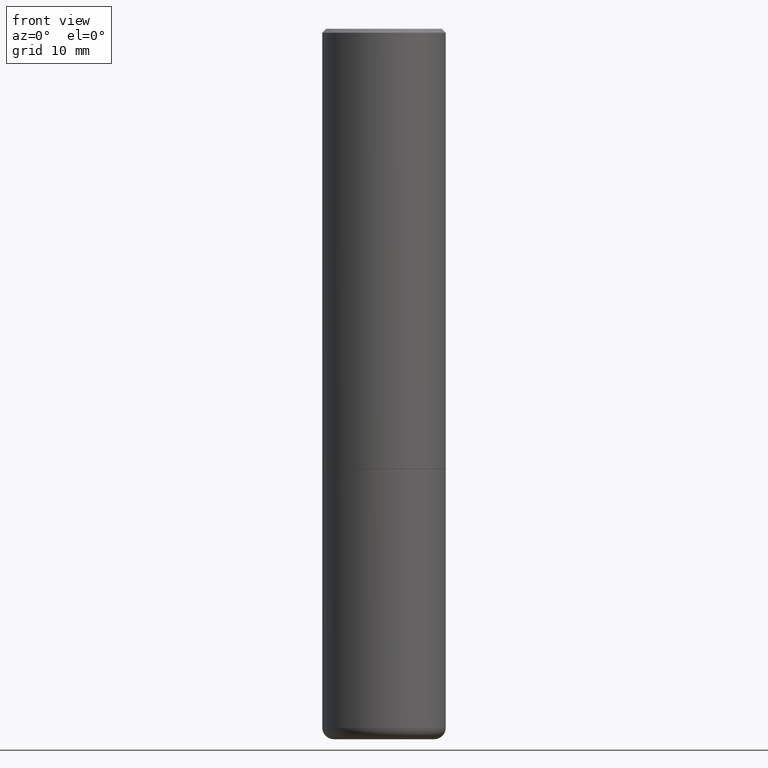
[diagram: clean part render]
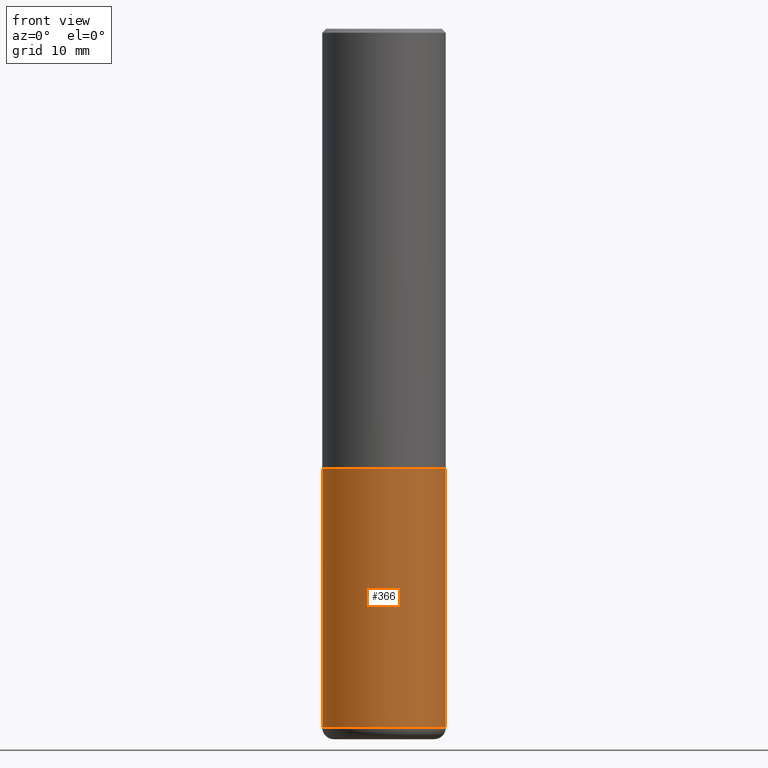
[diagram: same view with one face highlighted and labeled with its STEP entity id]
A machine part, front view. The second image highlights one B-rep face of the part: STEP entity #366.
In plain terms, the highlighted cylindrical surface (partial cylindrical patch) has radius 7.9997 mm, axis along (-0, 0, 1).
Its self-contained STEP definition (entity closure, byte-faithful):
#1 = CARTESIAN_POINT ( 'NONE',  ( -0.3149500000000000077, 2.237854346276435590E-15, -1.549218606675782676E-29 ) ) ;
#13 = VECTOR ( 'NONE', #358, 39.37007874015748143 ) ;
#16 = EDGE_CURVE ( 'NONE', #359, #370, #70, .T. ) ;
#66 = CARTESIAN_POINT ( 'NONE',  ( -0.3149500000000000077, -1.020194451588780718E-14, -3.562899999999999956 ) ) ;
#70 = LINE ( 'NONE', #1, #337 ) ;
#86 = ORIENTED_EDGE ( 'NONE', *, *, #16, .F. ) ;
#108 = DIRECTION ( 'NONE',  ( 1.000000000000000000, -6.982962677686266711E-15, 0.000000000000000000 ) ) ;
#110 = DIRECTION ( 'NONE',  ( 1.000000000000000000, -6.982962677686269866E-15, 0.000000000000000000 ) ) ;
#112 = FACE_OUTER_BOUND ( 'NONE', #365, .T. ) ;
#117 = VERTEX_POINT ( 'NONE', #294 ) ;
#140 = CIRCLE ( 'NONE', #395, 0.3149500000000000077 ) ;
#143 = EDGE_CURVE ( 'NONE', #370, #117, #258, .T. ) ;
#162 = EDGE_CURVE ( 'NONE', #359, #286, #140, .T. ) ;
#167 = AXIS2_PLACEMENT_3D ( 'NONE', #233, #268, #108 ) ;
#170 = DIRECTION ( 'NONE',  ( -2.445468806185136597E-29, 3.491481338843145583E-15, 1.000000000000000000 ) ) ;
#174 = ORIENTED_EDGE ( 'NONE', *, *, #162, .T. ) ;
#177 = ORIENTED_EDGE ( 'NONE', *, *, #181, .T. ) ;
#181 = EDGE_CURVE ( 'NONE', #286, #117, #235, .T. ) ;
#189 = AXIS2_PLACEMENT_3D ( 'NONE', #266, #304, #239 ) ;
#233 = CARTESIAN_POINT ( 'NONE',  ( 5.487632001079445967E-29, -7.834884124364017250E-15, -2.243999999999999773 ) ) ;
#234 = CARTESIAN_POINT ( 'NONE',  ( -0.3149500000000000077, -7.899487146987694225E-15, -2.243999999999999773 ) ) ;
#235 = LINE ( 'NONE', #264, #13 ) ;
#239 = DIRECTION ( 'NONE',  ( 1.000000000000000000, -6.982962677686266711E-15, 4.876176775795936353E-29 ) ) ;
#256 = DIRECTION ( 'NONE',  ( -2.445468806185136877E-29, 3.491481338843145188E-15, 1.000000000000000000 ) ) ;
#258 = CIRCLE ( 'NONE', #167, 0.3149500000000000077 ) ;
#264 = CARTESIAN_POINT ( 'NONE',  ( 0.3149500000000000077, -2.199284095337289871E-15, 1.535751875536930130E-29 ) ) ;
#266 = CARTESIAN_POINT ( 'NONE',  ( 0.000000000000000000, 0.000000000000000000, 0.000000000000000000 ) ) ;
#268 = DIRECTION ( 'NONE',  ( -2.445468806185136597E-29, 3.491481338843145583E-15, 1.000000000000000000 ) ) ;
#286 = VERTEX_POINT ( 'NONE', #397 ) ;
#294 = CARTESIAN_POINT ( 'NONE',  ( 0.3149500000000000077, -1.003416821970130712E-14, -2.243999999999999773 ) ) ;
#304 = DIRECTION ( 'NONE',  ( -2.445468806185136597E-29, 3.491481338843145583E-15, 1.000000000000000000 ) ) ;
#337 = VECTOR ( 'NONE', #256, 39.37007874015748143 ) ;
#356 = CARTESIAN_POINT ( 'NONE',  ( 8.712960809557023143E-29, -1.243979886216424317E-14, -3.562899999999999956 ) ) ;
#358 = DIRECTION ( 'NONE',  ( -2.445468806185136877E-29, 3.491481338843145188E-15, 1.000000000000000000 ) ) ;
#359 = VERTEX_POINT ( 'NONE', #66 ) ;
#365 = EDGE_LOOP ( 'NONE', ( #86, #174, #177, #378 ) ) ;
#366 = ADVANCED_FACE ( 'NONE', ( #112 ), #393, .T. ) ;
#370 = VERTEX_POINT ( 'NONE', #234 ) ;
#378 = ORIENTED_EDGE ( 'NONE', *, *, #143, .F. ) ;
#393 = CYLINDRICAL_SURFACE ( 'NONE', #189, 0.3149500000000000077 ) ;
#395 = AXIS2_PLACEMENT_3D ( 'NONE', #356, #170, #110 ) ;
#397 = CARTESIAN_POINT ( 'NONE',  ( 0.3149500000000000077, -1.463908295750153462E-14, -3.562899999999999956 ) ) ;